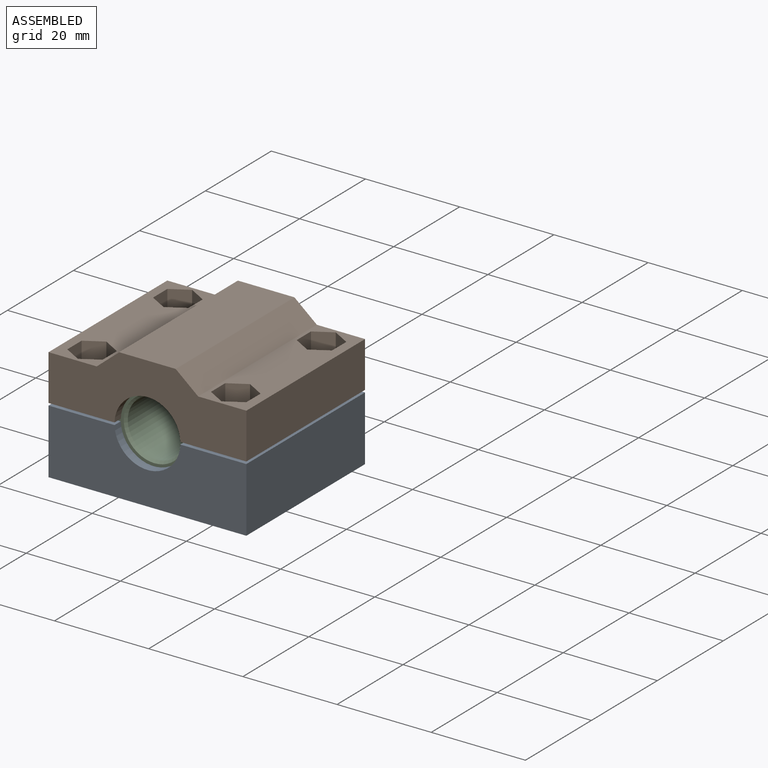
[diagram: assembled view]
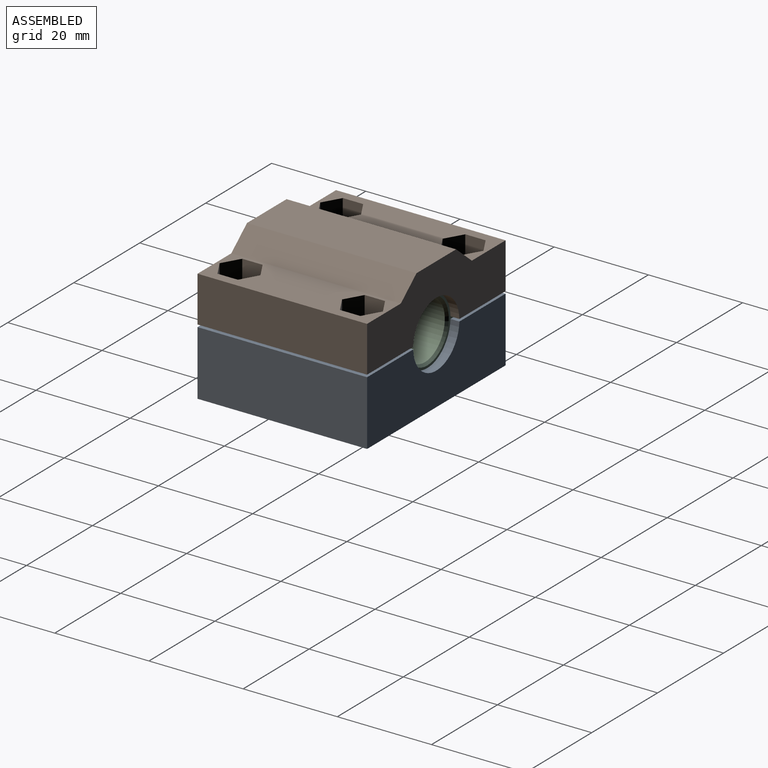
[diagram: assembled view, second angle]
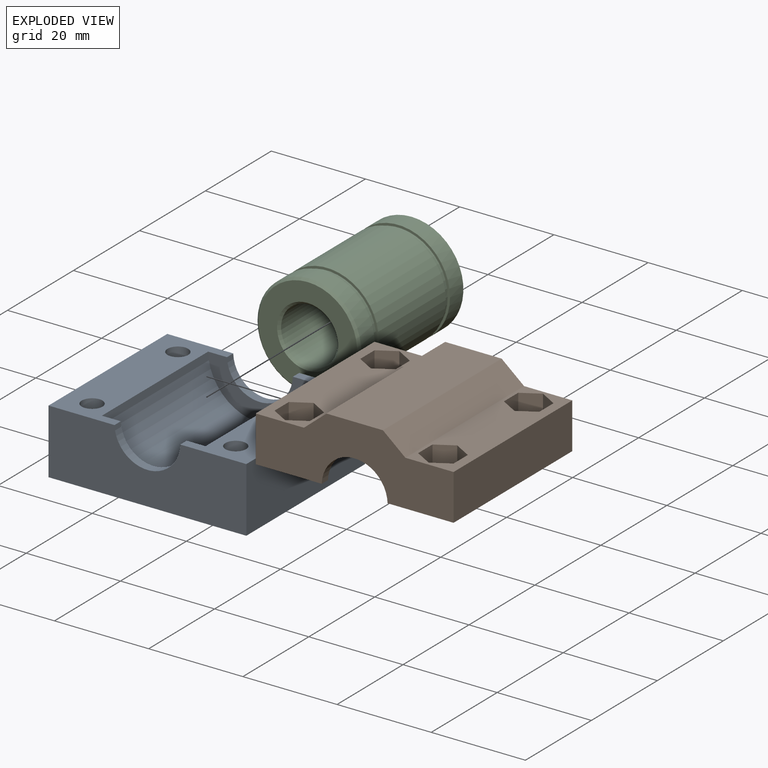
[diagram: exploded view]
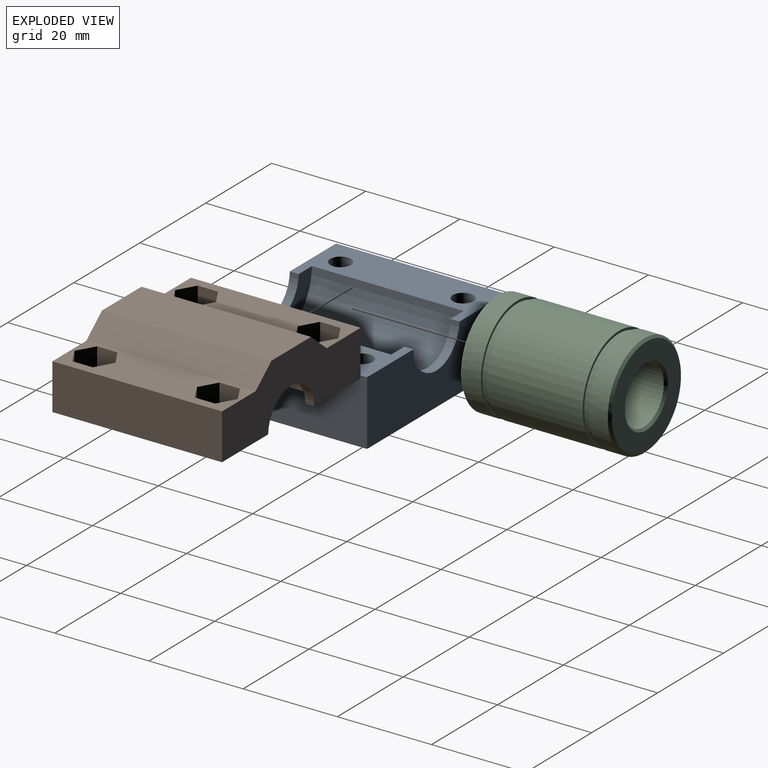
[diagram: exploded view, second angle]
ASSEMBLY  parts=3 mates=3
PART A: 16 faces, bbox 42x36x13.8 mm
  f0: plane 36x13.76mm, normal (1,0,0), area 495.2mm2, adj f5,f7,f13,f14
  f1: plane 36x13.76mm, normal (-1,0,0), area 495.2mm2, adj f5,f7,f13,f15
  f2: cylinder r=7mm len=13.99mm, axis (0,-1,0), area 40.8mm2, adj f7,f10,f14,f15
  f3: cylinder r=2.2mm len=13.76mm, axis (0,0,-1), area 190.1mm2, adj f13,f14
  f4: cylinder r=2.2mm len=13.76mm, axis (0,0,-1), area 190.1mm2, adj f13,f14
  f5: plane 42x13.76mm, normal (0,1,0), area 504.2mm2, adj f0,f1,f6,f13,f14,f15
  f6: cylinder r=7mm len=13.99mm, axis (0,-1,0), area 40.8mm2, adj f5,f12,f14,f15
  f7: plane 42x13.76mm, normal (0,-1,0), area 504.2mm2, adj f0,f1,f2,f13,f14,f15
  f8: cylinder r=2.2mm len=13.76mm, axis (0,0,-1), area 190.1mm2, adj f13,f15
  f9: cylinder r=2.2mm len=13.76mm, axis (0,0,-1), area 190.1mm2, adj f13,f15
  f10: plane 21.99x10.75mm, normal (0,1,0), area 111.1mm2, adj f2,f11,f14,f15
  f11: cylinder r=11mm len=32.2mm, axis (0,-1,0), area 1096.7mm2, adj f10,f12,f14,f15
  f12: plane 21.99x10.75mm, normal (0,-1,0), area 111.1mm2, adj f6,f11,f14,f15
  f13: plane 42x36mm, normal (0,0,-1), area 1451.2mm2, adj f0,f1,f3,f4,f5,f7,f8,f9
  f14: plane 36x14mm, normal (0,0,1), area 344.9mm2, adj f0,f2,f3,f4,f5,f6,f7,f10
  f15: plane 36x14mm, normal (0,0,1), area 344.9mm2, adj f1,f2,f5,f6,f7,f8,f9,f10
PART B: 48 faces, bbox 42x36x13.7 mm
  f0: cylinder r=7mm len=13.99mm, axis (0,-1,0), area 40.8mm2, adj f6,f45,f46,f47
  f1: cylinder r=2.2mm len=4.75mm, axis (0,0,-1), area 65.6mm2, adj f9,f47
  f2: cylinder r=2.2mm len=4.75mm, axis (0,0,-1), area 65.6mm2, adj f10,f47
  f3: cylinder r=7mm len=13.99mm, axis (0,-1,0), area 40.8mm2, adj f8,f44,f46,f47
  f4: cylinder r=2.2mm len=4.75mm, axis (0,0,-1), area 65.6mm2, adj f41,f46
  f5: cylinder r=2.2mm len=4.75mm, axis (0,0,-1), area 65.6mm2, adj f42,f46
  f6: plane 21.99x10.75mm, normal (0,1,0), area 111.1mm2, adj f0,f7,f46,f47
  f7: cylinder r=11mm len=32.2mm, axis (0,-1,0), area 1096.7mm2, adj f6,f8,f46,f47
  f8: plane 21.99x10.75mm, normal (0,-1,0), area 111.1mm2, adj f3,f7,f46,f47
  f9: plane 8.66x7.5mm, normal (0,0,1), area 33.5mm2, adj f1,f11,f12,f13,f14,f15,f16
  f10: plane 8.66x7.5mm, normal (0,0,1), area 33.5mm2, adj f2,f17,f18,f19,f20,f21,f22
  f11: plane 5x4.33mm, normal (-1,0,0), area 21.7mm2, adj f9,f12,f16,f39
  f12: plane 5x3.75mm, normal (-0.5,0.87,0), area 21.7mm2, adj f9,f11,f13,f39
  f13: plane 5x3.75mm, normal (0.5,0.87,0), area 21.7mm2, adj f9,f12,f14,f39
  f14: plane 5x4.33mm, normal (1,0,0), area 21.7mm2, adj f9,f13,f15,f39
  f15: plane 5x3.75mm, normal (0.5,-0.87,0), area 21.7mm2, adj f9,f14,f16,f39
  f16: plane 5x3.75mm, normal (-0.5,-0.87,0), area 21.7mm2, adj f9,f11,f15,f39
  f17: plane 5x4.33mm, normal (-1,0,0), area 21.7mm2, adj f10,f18,f22,f39
  f18: plane 5x3.75mm, normal (-0.5,0.87,0), area 21.7mm2, adj f10,f17,f19,f39
  f19: plane 5x3.75mm, normal (0.5,0.87,0), area 21.7mm2, adj f10,f18,f20,f39
  f20: plane 5x4.33mm, normal (1,0,0), area 21.7mm2, adj f10,f19,f21,f39
  f21: plane 5x3.75mm, normal (0.5,-0.87,0), area 21.7mm2, adj f10,f20,f22,f39
  f22: plane 5x3.75mm, normal (-0.5,-0.87,0), area 21.7mm2, adj f10,f17,f21,f39
  f23: plane 5x3.75mm, normal (0.5,0.87,0), area 21.7mm2, adj f24,f28,f35,f41
  f24: plane 5x4.33mm, normal (1,0,0), area 21.7mm2, adj f23,f25,f35,f41
  f25: plane 5x3.75mm, normal (0.5,-0.87,0), area 21.7mm2, adj f24,f26,f35,f41
  f26: plane 5x3.75mm, normal (-0.5,-0.87,0), area 21.7mm2, adj f25,f27,f35,f41
  f27: plane 5x4.33mm, normal (-1,0,0), area 21.7mm2, adj f26,f28,f35,f41
  f28: plane 5x3.75mm, normal (-0.5,0.87,0), area 21.7mm2, adj f23,f27,f35,f41
  f29: plane 5x3.75mm, normal (0.5,0.87,0), area 21.7mm2, adj f30,f34,f35,f42
  f30: plane 5x4.33mm, normal (1,0,0), area 21.7mm2, adj f29,f31,f35,f42
  f31: plane 5x3.75mm, normal (0.5,-0.87,0), area 21.7mm2, adj f30,f32,f35,f42
  f32: plane 5x3.75mm, normal (-0.5,-0.87,0), area 21.7mm2, adj f31,f33,f35,f42
  f33: plane 5x4.33mm, normal (-1,0,0), area 21.7mm2, adj f32,f34,f35,f42
  f34: plane 5x3.75mm, normal (-0.5,0.87,0), area 21.7mm2, adj f29,f33,f35,f42
  f35: plane 36x10.23mm, normal (0,0,1), area 271mm2, adj f23,f24,f25,f26,f27,f28,f29,f30
  f36: plane 36x4.77mm, normal (-0.64,0,0.77), area 224mm2, adj f35,f37,f44,f45
  f37: plane 36x12mm, normal (0,0,1), area 432mm2, adj f36,f38,f44,f45
  f38: plane 36x4.77mm, normal (0.64,0,0.77), area 224mm2, adj f37,f39,f44,f45
  f39: plane 36x10.23mm, normal (0,0,1), area 271mm2, adj f11,f12,f13,f14,f15,f16,f17,f18
  f40: plane 36x9.75mm, normal (1,0,0), area 350.8mm2, adj f39,f44,f45,f47
  f41: plane 8.66x7.5mm, normal (0,0,1), area 33.5mm2, adj f4,f23,f24,f25,f26,f27,f28
  f42: plane 8.66x7.5mm, normal (0,0,1), area 33.5mm2, adj f5,f29,f30,f31,f32,f33,f34
  f43: plane 36x9.75mm, normal (-1,0,0), area 350.8mm2, adj f35,f44,f45,f46
  f44: plane 42x13.75mm, normal (0,1,0), area 402.9mm2, adj f3,f35,f36,f37,f38,f39,f40,f43
  f45: plane 42x13.75mm, normal (0,-1,0), area 402.9mm2, adj f0,f35,f36,f37,f38,f39,f40,f43
  f46: plane 36x14mm, normal (0,0,-1), area 344.9mm2, adj f0,f3,f4,f5,f6,f7,f8,f43
  f47: plane 36x14mm, normal (0,0,-1), area 344.9mm2, adj f0,f1,f2,f3,f6,f7,f8,f40
PART C: 16 faces, bbox 32x22x22 mm
  f0: cone r=6.25mm half-angle=45deg, axis (-1,0,0), area 27.8mm2, adj f1,f2
  f1: cylinder r=6mm len=31mm, axis (1,0,0), area 1168.7mm2, adj f0,f3
  f2: plane 21x21mm, normal (-1,0,0), area 213.6mm2, adj f0,f5
  f3: cone r=6.25mm half-angle=45deg, axis (1,0,0), area 27.8mm2, adj f1,f4
  f4: plane 21x21mm, normal (1,0,0), area 213.6mm2, adj f3,f7
  f5: cone r=10.75mm half-angle=45deg, axis (1,0,0), area 47.8mm2, adj f2,f6
  f6: cylinder r=11mm len=22mm, axis (1,0,0), area 279.9mm2, adj f5,f9
  f7: cone r=10.75mm half-angle=45deg, axis (-1,0,0), area 47.8mm2, adj f4,f8
  f8: cylinder r=11mm len=22mm, axis (1,0,0), area 279.9mm2, adj f7,f15
  f9: plane 22x22mm, normal (1,0,0), area 33.8mm2, adj f6,f10
  f10: cylinder r=10.5mm len=21mm, axis (1,0,0), area 85.8mm2, adj f9,f11
  f11: plane 22x22mm, normal (-1,0,0), area 33.8mm2, adj f10,f12
  f12: cylinder r=11mm len=22mm, axis (1,0,0), area 1403mm2, adj f11,f13
  f13: plane 22x22mm, normal (1,0,0), area 33.8mm2, adj f12,f14
  f14: cylinder r=10.5mm len=21mm, axis (1,0,0), area 85.8mm2, adj f13,f15
  f15: plane 22x22mm, normal (-1,0,0), area 33.8mm2, adj f8,f14
PLACE A t=(7.3,6.19,15.27)mm
PLACE B t=(7.3,6.19,15.27)mm
PLACE C rot(axis=(-0.58,0.58,-0.58),120deg) t=(7.4,40.29,17.27)mm
MATE cylindrical C.f0 <-> A.f2  axis (0,-1,0) through (7.4,24.29,17.27)mm
MATE planar C.f0 <-> A.f12  axis (0,1,0) through (7.4,40.29,17.27)mm
MATE planar B.f43 <-> A.f1  axis (-1,0,0) through (-13.6,24.19,22.4)mm
